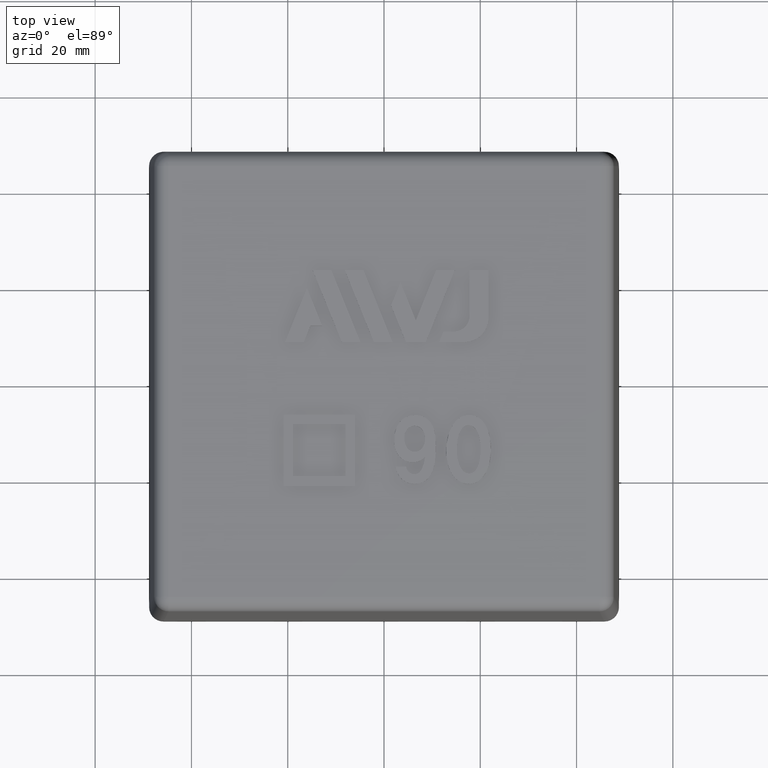
[diagram: clean part render]
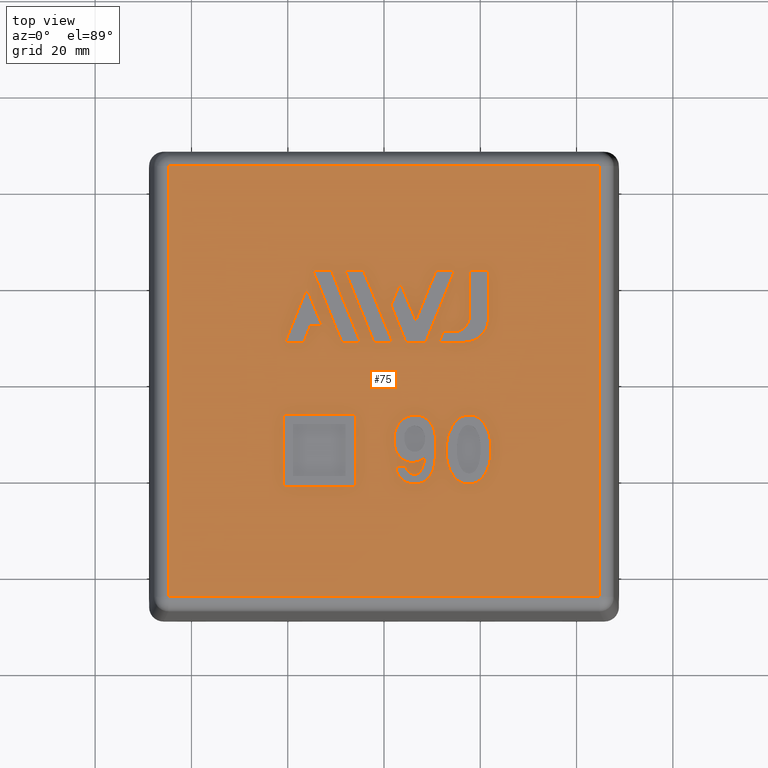
[diagram: same view with one face highlighted and labeled with its STEP entity id]
A machine part, top view. The second image highlights one B-rep face of the part: STEP entity #75.
In plain terms, the highlighted planar face has unit normal (0, 0, 1).
Its self-contained STEP definition (entity closure, byte-faithful):
#75 = ADVANCED_FACE( '', ( #153, #154, #155, #156, #157, #158, #159, #160, #161 ), #162, .T. );
#153 = FACE_BOUND( '', #322, .T. );
#154 = FACE_OUTER_BOUND( '', #323, .T. );
#155 = FACE_BOUND( '', #324, .T. );
#156 = FACE_BOUND( '', #325, .T. );
#157 = FACE_BOUND( '', #326, .T. );
#158 = FACE_BOUND( '', #327, .T. );
#159 = FACE_BOUND( '', #328, .T. );
#160 = FACE_BOUND( '', #329, .T. );
#161 = FACE_BOUND( '', #330, .T. );
#162 = PLANE( '', #331 );
#322 = EDGE_LOOP( '', ( #497, #498, #499, #500 ) );
#323 = EDGE_LOOP( '', ( #501, #502, #503, #504 ) );
#324 = EDGE_LOOP( '', ( #505, #506, #507, #508, #509, #510, #511, #512 ) );
#325 = EDGE_LOOP( '', ( #513, #514, #515, #516, #517, #518, #519 ) );
#326 = EDGE_LOOP( '', ( #520, #521, #522, #523 ) );
#327 = EDGE_LOOP( '', ( #524, #525, #526, #527 ) );
#328 = EDGE_LOOP( '', ( #528, #529, #530, #531, #532 ) );
#329 = EDGE_LOOP( '', ( #533, #534, #535, #536 ) );
#330 = EDGE_LOOP( '', ( #537 ) );
#331 = AXIS2_PLACEMENT_3D( '', #538, #539, #540 );
#497 = ORIENTED_EDGE( '', *, *, #1152, .T. );
#498 = ORIENTED_EDGE( '', *, *, #1153, .T. );
#499 = ORIENTED_EDGE( '', *, *, #1154, .T. );
#500 = ORIENTED_EDGE( '', *, *, #1155, .T. );
#501 = ORIENTED_EDGE( '', *, *, #1156, .T. );
#502 = ORIENTED_EDGE( '', *, *, #1157, .T. );
#503 = ORIENTED_EDGE( '', *, *, #1158, .T. );
#504 = ORIENTED_EDGE( '', *, *, #1159, .T. );
#505 = ORIENTED_EDGE( '', *, *, #1160, .F. );
#506 = ORIENTED_EDGE( '', *, *, #1161, .F. );
#507 = ORIENTED_EDGE( '', *, *, #1162, .F. );
#508 = ORIENTED_EDGE( '', *, *, #1163, .F. );
#509 = ORIENTED_EDGE( '', *, *, #1164, .F. );
#510 = ORIENTED_EDGE( '', *, *, #1165, .F. );
#511 = ORIENTED_EDGE( '', *, *, #1166, .F. );
#512 = ORIENTED_EDGE( '', *, *, #1167, .F. );
#513 = ORIENTED_EDGE( '', *, *, #1168, .F. );
#514 = ORIENTED_EDGE( '', *, *, #1169, .F. );
#515 = ORIENTED_EDGE( '', *, *, #1170, .F. );
#516 = ORIENTED_EDGE( '', *, *, #1171, .F. );
#517 = ORIENTED_EDGE( '', *, *, #1172, .F. );
#518 = ORIENTED_EDGE( '', *, *, #1173, .F. );
#519 = ORIENTED_EDGE( '', *, *, #1174, .F. );
#520 = ORIENTED_EDGE( '', *, *, #1175, .F. );
#521 = ORIENTED_EDGE( '', *, *, #1176, .F. );
#522 = ORIENTED_EDGE( '', *, *, #1177, .F. );
#523 = ORIENTED_EDGE( '', *, *, #1178, .F. );
#524 = ORIENTED_EDGE( '', *, *, #1179, .F. );
#525 = ORIENTED_EDGE( '', *, *, #1180, .F. );
#526 = ORIENTED_EDGE( '', *, *, #1181, .F. );
#527 = ORIENTED_EDGE( '', *, *, #1182, .F. );
#528 = ORIENTED_EDGE( '', *, *, #1183, .F. );
#529 = ORIENTED_EDGE( '', *, *, #1184, .F. );
#530 = ORIENTED_EDGE( '', *, *, #1185, .F. );
#531 = ORIENTED_EDGE( '', *, *, #1186, .F. );
#532 = ORIENTED_EDGE( '', *, *, #1187, .F. );
#533 = ORIENTED_EDGE( '', *, *, #1188, .T. );
#534 = ORIENTED_EDGE( '', *, *, #1189, .T. );
#535 = ORIENTED_EDGE( '', *, *, #1190, .T. );
#536 = ORIENTED_EDGE( '', *, *, #1191, .T. );
#537 = ORIENTED_EDGE( '', *, *, #1192, .T. );
#538 = CARTESIAN_POINT( '', ( -48.8000000000000, -48.8000000000000, 63.0000000000000 ) );
#539 = DIRECTION( '', ( 0.000000000000000, 0.000000000000000, 1.00000000000000 ) );
#540 = DIRECTION( '', ( 0.000000000000000, -1.00000000000000, 0.000000000000000 ) );
#1152 = EDGE_CURVE( '', #1326, #1327, #1328, .T. );
#1153 = EDGE_CURVE( '', #1327, #1329, #1330, .T. );
#1154 = EDGE_CURVE( '', #1329, #1331, #1332, .T. );
#1155 = EDGE_CURVE( '', #1331, #1326, #1333, .T. );
#1156 = EDGE_CURVE( '', #1334, #1335, #1336, .F. );
#1157 = EDGE_CURVE( '', #1335, #1337, #1338, .F. );
#1158 = EDGE_CURVE( '', #1337, #1339, #1340, .F. );
#1159 = EDGE_CURVE( '', #1339, #1334, #1341, .F. );
#1160 = EDGE_CURVE( '', #1342, #1343, #1344, .T. );
#1161 = EDGE_CURVE( '', #1345, #1342, #1346, .T. );
#1162 = EDGE_CURVE( '', #1347, #1345, #1348, .T. );
#1163 = EDGE_CURVE( '', #1349, #1347, #1350, .T. );
#1164 = EDGE_CURVE( '', #1351, #1349, #1352, .T. );
#1165 = EDGE_CURVE( '', #1353, #1351, #1354, .T. );
#1166 = EDGE_CURVE( '', #1355, #1353, #1356, .T. );
#1167 = EDGE_CURVE( '', #1343, #1355, #1357, .T. );
#1168 = EDGE_CURVE( '', #1358, #1359, #1360, .T. );
#1169 = EDGE_CURVE( '', #1361, #1358, #1362, .T. );
#1170 = EDGE_CURVE( '', #1363, #1361, #1364, .T. );
#1171 = EDGE_CURVE( '', #1365, #1363, #1366, .T. );
#1172 = EDGE_CURVE( '', #1367, #1365, #1368, .T. );
#1173 = EDGE_CURVE( '', #1369, #1367, #1370, .T. );
#1174 = EDGE_CURVE( '', #1359, #1369, #1371, .T. );
#1175 = EDGE_CURVE( '', #1372, #1373, #1374, .T. );
#1176 = EDGE_CURVE( '', #1375, #1372, #1376, .T. );
#1177 = EDGE_CURVE( '', #1377, #1375, #1378, .T. );
#1178 = EDGE_CURVE( '', #1373, #1377, #1379, .T. );
#1179 = EDGE_CURVE( '', #1380, #1381, #1382, .T. );
#1180 = EDGE_CURVE( '', #1383, #1380, #1384, .T. );
#1181 = EDGE_CURVE( '', #1385, #1383, #1386, .T. );
#1182 = EDGE_CURVE( '', #1381, #1385, #1387, .T. );
#1183 = EDGE_CURVE( '', #1388, #1389, #1390, .T. );
#1184 = EDGE_CURVE( '', #1391, #1388, #1392, .T. );
#1185 = EDGE_CURVE( '', #1393, #1391, #1394, .T. );
#1186 = EDGE_CURVE( '', #1395, #1393, #1396, .T. );
#1187 = EDGE_CURVE( '', #1389, #1395, #1397, .T. );
#1188 = EDGE_CURVE( '', #1398, #1399, #1400, .T. );
#1189 = EDGE_CURVE( '', #1399, #1401, #1402, .T. );
#1190 = EDGE_CURVE( '', #1401, #1403, #1404, .T. );
#1191 = EDGE_CURVE( '', #1403, #1398, #1405, .T. );
#1192 = EDGE_CURVE( '', #1406, #1406, #1407, .T. );
#1326 = VERTEX_POINT( '', #1614 );
#1327 = VERTEX_POINT( '', #1615 );
#1328 = B_SPLINE_CURVE_WITH_KNOTS( '', 2, ( #1616, #1617, #1618, #1619, #1620, #1621, #1622, #1623, #1624, #1625, #1626, #1627, #1628, #1629, #1630, #1631, #1632, #1633, #1634, #1635, #1636, #1637, #1638, #1639, #1640 ), .UNSPECIFIED., .F., .F., ( 3, 2, 2, 2, 2, 2, 2, 2, 2, 2, 2, 2, 3 ), ( 6.00000000000000, 7.00000000000000, 8.00000000000000, 9.00000000000000, 10.0000000000000, 11.0000000000000, 12.0000000000000, 13.0000000000000, 14.0000000000000, 15.0000000000000, 16.0000000000000, 17.0000000000000, 18.0000000000000 ), .UNSPECIFIED. );
#1329 = VERTEX_POINT( '', #1641 );
#1330 = B_SPLINE_CURVE_WITH_KNOTS( '', 2, ( #1642, #1643, #1644 ), .UNSPECIFIED., .F., .F., ( 3, 3 ), ( 0.000000000000000, 1.00000000000000 ), .UNSPECIFIED. );
#1331 = VERTEX_POINT( '', #1645 );
#1332 = B_SPLINE_CURVE_WITH_KNOTS( '', 2, ( #1646, #1647, #1648 ), .UNSPECIFIED., .F., .F., ( 3, 3 ), ( 1.00000000000000, 2.00000000000000 ), .UNSPECIFIED. );
#1333 = B_SPLINE_CURVE_WITH_KNOTS( '', 2, ( #1649, #1650, #1651, #1652, #1653, #1654, #1655, #1656, #1657 ), .UNSPECIFIED., .F., .F., ( 3, 2, 2, 2, 3 ), ( 2.00000000000000, 3.00000000000000, 4.00000000000000, 5.00000000000000, 6.00000000000000 ), .UNSPECIFIED. );
#1334 = VERTEX_POINT( '', #1658 );
#1335 = VERTEX_POINT( '', #1659 );
#1336 = LINE( '', #1660, #1661 );
#1337 = VERTEX_POINT( '', #1662 );
#1338 = LINE( '', #1663, #1664 );
#1339 = VERTEX_POINT( '', #1665 );
#1340 = LINE( '', #1666, #1667 );
#1341 = LINE( '', #1668, #1669 );
#1342 = VERTEX_POINT( '', #1670 );
#1343 = VERTEX_POINT( '', #1671 );
#1344 = LINE( '', #1672, #1673 );
#1345 = VERTEX_POINT( '', #1674 );
#1346 = LINE( '', #1675, #1676 );
#1347 = VERTEX_POINT( '', #1677 );
#1348 = LINE( '', #1678, #1679 );
#1349 = VERTEX_POINT( '', #1680 );
#1350 = CIRCLE( '', #1681, 5.00250000000000 );
#1351 = VERTEX_POINT( '', #1682 );
#1352 = LINE( '', #1683, #1684 );
#1353 = VERTEX_POINT( '', #1685 );
#1354 = LINE( '', #1686, #1687 );
#1355 = VERTEX_POINT( '', #1688 );
#1356 = LINE( '', #1689, #1690 );
#1357 = CIRCLE( '', #1691, 3.33500000000000 );
#1358 = VERTEX_POINT( '', #1692 );
#1359 = VERTEX_POINT( '', #1693 );
#1360 = LINE( '', #1694, #1695 );
#1361 = VERTEX_POINT( '', #1696 );
#1362 = LINE( '', #1697, #1698 );
#1363 = VERTEX_POINT( '', #1699 );
#1364 = LINE( '', #1700, #1701 );
#1365 = VERTEX_POINT( '', #1702 );
#1366 = LINE( '', #1703, #1704 );
#1367 = VERTEX_POINT( '', #1705 );
#1368 = LINE( '', #1706, #1707 );
#1369 = VERTEX_POINT( '', #1708 );
#1370 = LINE( '', #1709, #1710 );
#1371 = LINE( '', #1711, #1712 );
#1372 = VERTEX_POINT( '', #1713 );
#1373 = VERTEX_POINT( '', #1714 );
#1374 = LINE( '', #1715, #1716 );
#1375 = VERTEX_POINT( '', #1717 );
#1376 = LINE( '', #1718, #1719 );
#1377 = VERTEX_POINT( '', #1720 );
#1378 = LINE( '', #1721, #1722 );
#1379 = LINE( '', #1723, #1724 );
#1380 = VERTEX_POINT( '', #1725 );
#1381 = VERTEX_POINT( '', #1726 );
#1382 = LINE( '', #1727, #1728 );
#1383 = VERTEX_POINT( '', #1729 );
#1384 = LINE( '', #1730, #1731 );
#1385 = VERTEX_POINT( '', #1732 );
#1386 = LINE( '', #1733, #1734 );
#1387 = LINE( '', #1735, #1736 );
#1388 = VERTEX_POINT( '', #1737 );
#1389 = VERTEX_POINT( '', #1738 );
#1390 = LINE( '', #1739, #1740 );
#1391 = VERTEX_POINT( '', #1741 );
#1392 = LINE( '', #1742, #1743 );
#1393 = VERTEX_POINT( '', #1744 );
#1394 = LINE( '', #1745, #1746 );
#1395 = VERTEX_POINT( '', #1747 );
#1396 = LINE( '', #1748, #1749 );
#1397 = LINE( '', #1750, #1751 );
#1398 = VERTEX_POINT( '', #1752 );
#1399 = VERTEX_POINT( '', #1753 );
#1400 = B_SPLINE_CURVE_WITH_KNOTS( '', 2, ( #1754, #1755, #1756 ), .UNSPECIFIED., .F., .F., ( 3, 3 ), ( 3.00000000000000, 4.00000000000000 ), .UNSPECIFIED. );
#1401 = VERTEX_POINT( '', #1757 );
#1402 = B_SPLINE_CURVE_WITH_KNOTS( '', 2, ( #1758, #1759, #1760 ), .UNSPECIFIED., .F., .F., ( 3, 3 ), ( 0.000000000000000, 1.00000000000000 ), .UNSPECIFIED. );
#1403 = VERTEX_POINT( '', #1761 );
#1404 = B_SPLINE_CURVE_WITH_KNOTS( '', 2, ( #1762, #1763, #1764 ), .UNSPECIFIED., .F., .F., ( 3, 3 ), ( 1.00000000000000, 2.00000000000000 ), .UNSPECIFIED. );
#1405 = B_SPLINE_CURVE_WITH_KNOTS( '', 2, ( #1765, #1766, #1767 ), .UNSPECIFIED., .F., .F., ( 3, 3 ), ( 2.00000000000000, 3.00000000000000 ), .UNSPECIFIED. );
#1406 = VERTEX_POINT( '', #1768 );
#1407 = B_SPLINE_CURVE_WITH_KNOTS( '', 2, ( #1769, #1770, #1771, #1772, #1773, #1774, #1775, #1776, #1777, #1778, #1779, #1780, #1781, #1782, #1783, #1784, #1785 ), .UNSPECIFIED., .T., .F., ( 3, 2, 2, 2, 2, 2, 2, 2, 3 ), ( 0.000000000000000, 1.00000000000000, 2.00000000000000, 3.00000000000000, 4.00000000000000, 5.00000000000000, 6.00000000000000, 7.00000000000000, 8.00000000000000 ), .UNSPECIFIED. );
#1614 = CARTESIAN_POINT( '', ( 8.52767414772706, -15.6635545454546, 63.0000000000000 ) );
#1615 = CARTESIAN_POINT( '', ( 3.82616649696201, -20.4325689468947, 63.0000000000000 ) );
#1616 = CARTESIAN_POINT( '', ( 8.52767414772706, -15.6635545454546, 63.0000000000000 ) );
#1617 = CARTESIAN_POINT( '', ( 7.57312869318161, -16.8908272727273, 63.0000000000000 ) );
#1618 = CARTESIAN_POINT( '', ( 5.66436453401810, -16.8144767063608, 63.0000000000000 ) );
#1619 = CARTESIAN_POINT( '', ( 4.16403778409072, -16.7544636363637, 63.0000000000000 ) );
#1620 = CARTESIAN_POINT( '', ( 3.16413485733249, -15.5760066155415, 63.0000000000000 ) );
#1621 = CARTESIAN_POINT( '', ( 2.25494687499982, -14.5044636363637, 63.0000000000000 ) );
#1622 = CARTESIAN_POINT( '', ( 2.12705426288008, -12.8674382012310, 63.0000000000000 ) );
#1623 = CARTESIAN_POINT( '', ( 1.91403778409073, -10.1408272727274, 63.0000000000000 ) );
#1624 = CARTESIAN_POINT( '', ( 3.27767414772709, -8.43628181818191, 63.0000000000000 ) );
#1625 = CARTESIAN_POINT( '', ( 4.36858323863617, -7.07264545454555, 63.0000000000000 ) );
#1626 = CARTESIAN_POINT( '', ( 6.41460580812444, -7.03854507838741, 63.0000000000000 ) );
#1627 = CARTESIAN_POINT( '', ( 8.45949232954524, -7.00446363636373, 63.0000000000000 ) );
#1628 = CARTESIAN_POINT( '', ( 9.61858323863614, -8.50446363636372, 63.0000000000000 ) );
#1629 = CARTESIAN_POINT( '', ( 10.7776741477270, -10.0044636363637, 63.0000000000000 ) );
#1630 = CARTESIAN_POINT( '', ( 10.7776741477270, -12.8681000000001, 63.0000000000000 ) );
#1631 = CARTESIAN_POINT( '', ( 10.7776741477270, -13.3794636363637, 63.0000000000000 ) );
#1632 = CARTESIAN_POINT( '', ( 10.7776741477270, -13.8908272727273, 63.0000000000000 ) );
#1633 = CARTESIAN_POINT( '', ( 10.7776741477270, -16.1408272727273, 63.0000000000000 ) );
#1634 = CARTESIAN_POINT( '', ( 10.4353630167481, -17.5723101840940, 63.0000000000000 ) );
#1635 = CARTESIAN_POINT( '', ( 10.0276741477270, -19.2771909090909, 63.0000000000000 ) );
#1636 = CARTESIAN_POINT( '', ( 9.00494687499979, -20.2999181818182, 63.0000000000000 ) );
#1637 = CARTESIAN_POINT( '', ( 7.98221960227252, -21.3226454545455, 63.0000000000000 ) );
#1638 = CARTESIAN_POINT( '', ( 6.41403778409071, -21.3226454545455, 63.0000000000000 ) );
#1639 = CARTESIAN_POINT( '', ( 4.91403778409072, -21.3226454545455, 63.0000000000000 ) );
#1640 = CARTESIAN_POINT( '', ( 3.82616649696201, -20.4325689468947, 63.0000000000000 ) );
#1641 = CARTESIAN_POINT( '', ( 2.39131051136346, -17.7090090909091, 63.0000000000000 ) );
#1642 = CARTESIAN_POINT( '', ( 3.82616649696201, -20.4325689468947, 63.0000000000000 ) );
#1643 = CARTESIAN_POINT( '', ( 2.66403778409073, -19.4817363636364, 63.0000000000000 ) );
#1644 = CARTESIAN_POINT( '', ( 2.39131051136346, -17.7090090909091, 63.0000000000000 ) );
#1645 = CARTESIAN_POINT( '', ( 4.57312869318163, -17.7090090909091, 63.0000000000000 ) );
#1646 = CARTESIAN_POINT( '', ( 2.39131051136346, -17.7090090909091, 63.0000000000000 ) );
#1647 = CARTESIAN_POINT( '', ( 3.48221960227254, -17.7090090909091, 63.0000000000000 ) );
#1648 = CARTESIAN_POINT( '', ( 4.57312869318163, -17.7090090909091, 63.0000000000000 ) );
#1649 = CARTESIAN_POINT( '', ( 4.57312869318163, -17.7090090909091, 63.0000000000000 ) );
#1650 = CARTESIAN_POINT( '', ( 4.70949232954526, -18.5271909090909, 63.0000000000000 ) );
#1651 = CARTESIAN_POINT( '', ( 5.25107629143490, -18.9413433505359, 63.0000000000000 ) );
#1652 = CARTESIAN_POINT( '', ( 5.86858323863617, -19.4135545454546, 63.0000000000000 ) );
#1653 = CARTESIAN_POINT( '', ( 6.61958407266452, -19.2829457047540, 63.0000000000000 ) );
#1654 = CARTESIAN_POINT( '', ( 7.43676505681797, -19.1408272727273, 63.0000000000000 ) );
#1655 = CARTESIAN_POINT( '', ( 7.97620987223341, -17.9789461318325, 63.0000000000000 ) );
#1656 = CARTESIAN_POINT( '', ( 8.32312869318161, -17.2317363636364, 63.0000000000000 ) );
#1657 = CARTESIAN_POINT( '', ( 8.52767414772706, -15.6635545454546, 63.0000000000000 ) );
#1658 = CARTESIAN_POINT( '', ( -44.7522391201752, -44.7522391201752, 63.0000000000000 ) );
#1659 = CARTESIAN_POINT( '', ( 44.7522391201752, -44.7522391201752, 63.0000000000000 ) );
#1660 = CARTESIAN_POINT( '', ( 44.7007878240531, -44.7522391201752, 63.0000000000000 ) );
#1661 = VECTOR( '', #2226, 1000.00000000000 );
#1662 = CARTESIAN_POINT( '', ( 44.7522391201752, 44.7522391201752, 63.0000000000000 ) );
#1663 = CARTESIAN_POINT( '', ( 44.7522391201752, 44.7007878240531, 63.0000000000000 ) );
#1664 = VECTOR( '', #2227, 1000.00000000000 );
#1665 = CARTESIAN_POINT( '', ( -44.7522391201752, 44.7522391201752, 63.0000000000000 ) );
#1666 = CARTESIAN_POINT( '', ( -44.7007878240531, 44.7522391201752, 63.0000000000000 ) );
#1667 = VECTOR( '', #2228, 1000.00000000000 );
#1668 = CARTESIAN_POINT( '', ( -44.7522391201752, -44.7007878240531, 63.0000000000000 ) );
#1669 = VECTOR( '', #2229, 1000.00000000000 );
#1670 = CARTESIAN_POINT( '', ( 17.7868131699999, 23.1246711799999, 63.0000000000001 ) );
#1671 = CARTESIAN_POINT( '', ( 17.7868131699999, 13.6439281774999, 63.0000000000001 ) );
#1672 = CARTESIAN_POINT( '', ( 17.7868131699999, 23.1246711799999, 63.0000000000001 ) );
#1673 = VECTOR( '', #2230, 1000.00000000000 );
#1674 = CARTESIAN_POINT( '', ( 21.7060151249999, 23.1246711799999, 63.0000000000001 ) );
#1675 = CARTESIAN_POINT( '', ( 21.7060151249999, 23.1246711799999, 63.0000000000001 ) );
#1676 = VECTOR( '', #2231, 1000.00000000000 );
#1677 = CARTESIAN_POINT( '', ( 21.7060151249999, 13.1306499999998, 63.0000000000001 ) );
#1678 = CARTESIAN_POINT( '', ( 21.7060151249999, 13.1306499999998, 63.0000000000001 ) );
#1679 = VECTOR( '', #2232, 1000.00000000000 );
#1680 = CARTESIAN_POINT( '', ( 16.7035151249999, 8.12814999999982, 63.0000000000001 ) );
#1681 = AXIS2_PLACEMENT_3D( '', #2233, #2234, #2235 );
#1682 = CARTESIAN_POINT( '', ( 11.4405799725000, 8.12814999999982, 63.0000000000001 ) );
#1683 = CARTESIAN_POINT( '', ( 11.4405799725000, 8.12814999999982, 63.0000000000001 ) );
#1684 = VECTOR( '', #2236, 1000.00000000000 );
#1685 = CARTESIAN_POINT( '', ( 12.3216702974999, 10.3089281774998, 63.0000000000001 ) );
#1686 = CARTESIAN_POINT( '', ( 12.3216702974999, 10.3089281774999, 63.0000000000001 ) );
#1687 = VECTOR( '', #2237, 1000.00000000000 );
#1688 = CARTESIAN_POINT( '', ( 14.4518131699999, 10.3089281774999, 63.0000000000001 ) );
#1689 = CARTESIAN_POINT( '', ( 14.4518131699999, 10.3089281774999, 63.0000000000001 ) );
#1690 = VECTOR( '', #2238, 1000.00000000000 );
#1691 = AXIS2_PLACEMENT_3D( '', #2239, #2240, #2241 );
#1692 = CARTESIAN_POINT( '', ( 14.7109159900000, 23.1246711799999, 63.0000000000001 ) );
#1693 = CARTESIAN_POINT( '', ( 10.8356626650000, 23.1246711799999, 63.0000000000001 ) );
#1694 = CARTESIAN_POINT( '', ( 14.7109159900000, 23.1246711799999, 63.0000000000001 ) );
#1695 = VECTOR( '', #2242, 1000.00000000000 );
#1696 = CARTESIAN_POINT( '', ( 8.65223149499993, 8.12814999999982, 63.0000000000001 ) );
#1697 = CARTESIAN_POINT( '', ( 8.65223149499993, 8.12814999999982, 63.0000000000001 ) );
#1698 = VECTOR( '', #2243, 1000.00000000000 );
#1699 = CARTESIAN_POINT( '', ( 4.55572926749995, 8.12814999999982, 63.0000000000001 ) );
#1700 = CARTESIAN_POINT( '', ( 4.55572926749995, 8.12814999999982, 63.0000000000001 ) );
#1701 = VECTOR( '', #2244, 1000.00000000000 );
#1702 = CARTESIAN_POINT( '', ( 1.46830632749996, 15.7684565774999, 63.0000000000001 ) );
#1703 = CARTESIAN_POINT( '', ( 1.46830632749996, 15.7684565774998, 63.0000000000001 ) );
#1704 = VECTOR( '', #2245, 1000.00000000000 );
#1705 = CARTESIAN_POINT( '', ( 3.40593298999996, 20.5650903624998, 63.0000000000001 ) );
#1706 = CARTESIAN_POINT( '', ( 3.40593298999996, 20.5650903624998, 63.0000000000001 ) );
#1707 = VECTOR( '', #2246, 1000.00000000000 );
#1708 = CARTESIAN_POINT( '', ( 6.60355433499995, 12.6510653274998, 63.0000000000001 ) );
#1709 = CARTESIAN_POINT( '', ( 6.60355433499995, 12.6510653274998, 63.0000000000001 ) );
#1710 = VECTOR( '', #2247, 1000.00000000000 );
#1711 = CARTESIAN_POINT( '', ( 10.8356626650000, 23.1246711799999, 63.0000000000001 ) );
#1712 = VECTOR( '', #2248, 1000.00000000000 );
#1713 = CARTESIAN_POINT( '', ( 1.76738245749995, 8.12814999999982, 63.0000000000001 ) );
#1714 = CARTESIAN_POINT( '', ( -4.29225418000006, 23.1246711799998, 63.0000000000001 ) );
#1715 = CARTESIAN_POINT( '', ( 1.76738245749995, 8.12814999999982, 63.0000000000001 ) );
#1716 = VECTOR( '', #2249, 1000.00000000000 );
#1717 = CARTESIAN_POINT( '', ( -2.10782084250005, 8.12814999999982, 63.0000000000001 ) );
#1718 = CARTESIAN_POINT( '', ( -2.10782084250005, 8.12814999999982, 63.0000000000001 ) );
#1719 = VECTOR( '', #2250, 1000.00000000000 );
#1720 = CARTESIAN_POINT( '', ( -8.16745581250004, 23.1246711799998, 63.0000000000001 ) );
#1721 = CARTESIAN_POINT( '', ( -8.16745581250004, 23.1246711799998, 63.0000000000001 ) );
#1722 = VECTOR( '', #2251, 1000.00000000000 );
#1723 = CARTESIAN_POINT( '', ( -4.29225418000006, 23.1246711799998, 63.0000000000001 ) );
#1724 = VECTOR( '', #2252, 1000.00000000000 );
#1725 = CARTESIAN_POINT( '', ( -4.89626770250005, 8.12814999999982, 63.0000000000001 ) );
#1726 = CARTESIAN_POINT( '', ( -10.9559043400001, 23.1246711799998, 63.0000000000001 ) );
#1727 = CARTESIAN_POINT( '', ( -4.89626770250005, 8.12814999999982, 63.0000000000001 ) );
#1728 = VECTOR( '', #2253, 1000.00000000000 );
#1729 = CARTESIAN_POINT( '', ( -8.77119419750006, 8.12814999999981, 63.0000000000001 ) );
#1730 = CARTESIAN_POINT( '', ( -8.77119419750006, 8.12814999999982, 63.0000000000001 ) );
#1731 = VECTOR( '', #2254, 1000.00000000000 );
#1732 = CARTESIAN_POINT( '', ( -14.8299787425001, 23.1246711799998, 63.0000000000001 ) );
#1733 = CARTESIAN_POINT( '', ( -14.8299787425001, 23.1246711799998, 63.0000000000001 ) );
#1734 = VECTOR( '', #2255, 1000.00000000000 );
#1735 = CARTESIAN_POINT( '', ( -10.9559043400001, 23.1246711799998, 63.0000000000001 ) );
#1736 = VECTOR( '', #2256, 1000.00000000000 );
#1737 = CARTESIAN_POINT( '', ( -20.5574894000001, 8.12814999999982, 63.0000000000001 ) );
#1738 = CARTESIAN_POINT( '', ( -16.6834149975000, 8.12814999999982, 63.0000000000001 ) );
#1739 = CARTESIAN_POINT( '', ( -20.5574894000001, 8.12814999999982, 63.0000000000001 ) );
#1740 = VECTOR( '', #2257, 1000.00000000000 );
#1741 = CARTESIAN_POINT( '', ( -16.0152060600001, 19.3721458549998, 63.0000000000001 ) );
#1742 = CARTESIAN_POINT( '', ( -16.0152060600001, 19.3721458549998, 63.0000000000001 ) );
#1743 = VECTOR( '', #2258, 1000.00000000000 );
#1744 = CARTESIAN_POINT( '', ( -12.8731841675000, 11.5917742799998, 63.0000000000001 ) );
#1745 = CARTESIAN_POINT( '', ( -12.8731841675001, 11.5917742799998, 63.0000000000001 ) );
#1746 = VECTOR( '', #2259, 1000.00000000000 );
#1747 = CARTESIAN_POINT( '', ( -15.2830018075000, 11.5917742799998, 63.0000000000001 ) );
#1748 = CARTESIAN_POINT( '', ( -15.2830018075000, 11.5917742799998, 63.0000000000001 ) );
#1749 = VECTOR( '', #2260, 1000.00000000000 );
#1750 = CARTESIAN_POINT( '', ( -16.6834149975000, 8.12814999999982, 63.0000000000001 ) );
#1751 = VECTOR( '', #2261, 1000.00000000000 );
#1752 = CARTESIAN_POINT( '', ( -5.99505312500014, -21.7999181818182, 63.0000000000000 ) );
#1753 = CARTESIAN_POINT( '', ( -20.9268713068182, -21.7999181818182, 63.0000000000000 ) );
#1754 = CARTESIAN_POINT( '', ( -5.99505312500014, -21.7999181818182, 63.0000000000000 ) );
#1755 = CARTESIAN_POINT( '', ( -13.4609622159092, -21.7999181818182, 63.0000000000000 ) );
#1756 = CARTESIAN_POINT( '', ( -20.9268713068182, -21.7999181818182, 63.0000000000000 ) );
#1757 = CARTESIAN_POINT( '', ( -20.9268713068182, -6.93628181818191, 63.0000000000000 ) );
#1758 = CARTESIAN_POINT( '', ( -20.9268713068182, -21.7999181818182, 63.0000000000000 ) );
#1759 = CARTESIAN_POINT( '', ( -20.9268713068182, -14.3681000000000, 63.0000000000000 ) );
#1760 = CARTESIAN_POINT( '', ( -20.9268713068182, -6.93628181818191, 63.0000000000000 ) );
#1761 = CARTESIAN_POINT( '', ( -5.99505312500014, -6.93628181818191, 63.0000000000000 ) );
#1762 = CARTESIAN_POINT( '', ( -20.9268713068182, -6.93628181818191, 63.0000000000000 ) );
#1763 = CARTESIAN_POINT( '', ( -13.4609622159092, -6.93628181818191, 63.0000000000000 ) );
#1764 = CARTESIAN_POINT( '', ( -5.99505312500014, -6.93628181818191, 63.0000000000000 ) );
#1765 = CARTESIAN_POINT( '', ( -5.99505312500014, -6.93628181818191, 63.0000000000000 ) );
#1766 = CARTESIAN_POINT( '', ( -5.99505312500014, -14.3681000000000, 63.0000000000000 ) );
#1767 = CARTESIAN_POINT( '', ( -5.99505312500014, -21.7999181818182, 63.0000000000000 ) );
#1768 = CARTESIAN_POINT( '', ( 14.3862489790093, -19.6219705835649, 63.0000000000000 ) );
#1769 = CARTESIAN_POINT( '', ( 14.3862489790093, -19.6219705835649, 63.0000000000000 ) );
#1770 = CARTESIAN_POINT( '', ( 13.0276741477270, -17.8453727272728, 63.0000000000000 ) );
#1771 = CARTESIAN_POINT( '', ( 12.9328958354924, -14.8440595065108, 63.0000000000000 ) );
#1772 = CARTESIAN_POINT( '', ( 12.8231286931816, -11.3681000000001, 63.0000000000000 ) );
#1773 = CARTESIAN_POINT( '', ( 14.2365607667260, -9.10660868232899, 63.0000000000000 ) );
#1774 = CARTESIAN_POINT( '', ( 15.5504014204543, -7.00446363636373, 63.0000000000000 ) );
#1775 = CARTESIAN_POINT( '', ( 17.6640377840906, -7.00446363636373, 63.0000000000000 ) );
#1776 = CARTESIAN_POINT( '', ( 19.6413105113634, -7.00446363636373, 63.0000000000000 ) );
#1777 = CARTESIAN_POINT( '', ( 20.8464923295452, -8.74528181818190, 63.0000000000000 ) );
#1778 = CARTESIAN_POINT( '', ( 22.0958559659088, -10.5499181818183, 63.0000000000000 ) );
#1779 = CARTESIAN_POINT( '', ( 22.2220688747785, -13.5474747674735, 63.0000000000000 ) );
#1780 = CARTESIAN_POINT( '', ( 22.3685832386361, -17.0271909090909, 63.0000000000000 ) );
#1781 = CARTESIAN_POINT( '', ( 21.0143358466838, -19.2148213114754, 63.0000000000000 ) );
#1782 = CARTESIAN_POINT( '', ( 19.7094923295452, -21.3226454545455, 63.0000000000000 ) );
#1783 = CARTESIAN_POINT( '', ( 17.6640377840906, -21.3226454545455, 63.0000000000000 ) );
#1784 = CARTESIAN_POINT( '', ( 15.6867650568179, -21.3226454545455, 63.0000000000000 ) );
#1785 = CARTESIAN_POINT( '', ( 14.3862489790093, -19.6219705835649, 63.0000000000000 ) );
#2226 = DIRECTION( '', ( -1.00000000000000, 0.000000000000000, 0.000000000000000 ) );
#2227 = DIRECTION( '', ( 0.000000000000000, -1.00000000000000, 0.000000000000000 ) );
#2228 = DIRECTION( '', ( 1.00000000000000, 0.000000000000000, 0.000000000000000 ) );
#2229 = DIRECTION( '', ( 0.000000000000000, 1.00000000000000, 0.000000000000000 ) );
#2230 = DIRECTION( '', ( -2.22044604925031E-016, -1.00000000000000, -2.71917234023173E-032 ) );
#2231 = DIRECTION( '', ( -1.00000000000000, -1.66533453693774E-016, -1.22460635382238E-016 ) );
#2232 = DIRECTION( '', ( 2.22044604925031E-016, 1.00000000000000, 2.71917234023173E-032 ) );
#2233 = CARTESIAN_POINT( '', ( 16.7035151249999, 13.1306499999998, 63.0000000000001 ) );
#2234 = DIRECTION( '', ( -1.22460635382238E-016, 6.99949108067063E-048, 1.00000000000000 ) );
#2235 = DIRECTION( '', ( 1.00000000000000, 2.89120579329468E-016, 1.22460635382238E-016 ) );
#2236 = DIRECTION( '', ( 1.00000000000000, 2.22044604925031E-016, 1.22460635382238E-016 ) );
#2237 = DIRECTION( '', ( -0.374606136016172, -0.927184039368147, -4.58745054346254E-017 ) );
#2238 = DIRECTION( '', ( -1.00000000000000, -2.77555756156289E-016, -1.22460635382238E-016 ) );
#2239 = CARTESIAN_POINT( '', ( 14.4518131699999, 13.6439281774999, 63.0000000000001 ) );
#2240 = DIRECTION( '', ( 1.22460635382238E-016, 0.000000000000000, -1.00000000000000 ) );
#2241 = DIRECTION( '', ( 1.00000000000000, 0.000000000000000, 1.22460635382238E-016 ) );
#2242 = DIRECTION( '', ( -1.00000000000000, 0.000000000000000, -1.22460635382238E-016 ) );
#2243 = DIRECTION( '', ( 0.374590469627020, 0.927190368837278, 4.58725869186557E-017 ) );
#2244 = DIRECTION( '', ( 1.00000000000000, 5.55111512312578E-017, 1.22460635382238E-016 ) );
#2245 = DIRECTION( '', ( 0.374662791989133, -0.927161146888127, 4.58814435610724E-017 ) );
#2246 = DIRECTION( '', ( -0.374550228315492, -0.927206625552694, -4.58676589420774E-017 ) );
#2247 = DIRECTION( '', ( -0.374621466961798, 0.927177845125405, -4.58763828719678E-017 ) );
#2248 = DIRECTION( '', ( -0.374644407000048, -0.927168575990139, -4.58791921236276E-017 ) );
#2249 = DIRECTION( '', ( -0.374641075834904, 0.927169922019295, -4.58787841870275E-017 ) );
#2250 = DIRECTION( '', ( 1.00000000000000, 0.000000000000000, 1.22460635382238E-016 ) );
#2251 = DIRECTION( '', ( 0.374640987210496, -0.927169957829710, 4.58787733340261E-017 ) );
#2252 = DIRECTION( '', ( -1.00000000000000, 0.000000000000000, -1.22460635382238E-016 ) );
#2253 = DIRECTION( '', ( -0.374641075834905, 0.927169922019295, -4.58787841870275E-017 ) );
#2254 = DIRECTION( '', ( 1.00000000000000, 0.000000000000000, 1.22460635382238E-016 ) );
#2255 = DIRECTION( '', ( 0.374595787424495, -0.927188220397468, 4.58732381395133E-017 ) );
#2256 = DIRECTION( '', ( -1.00000000000000, 0.000000000000000, -1.22460635382238E-016 ) );
#2257 = DIRECTION( '', ( 1.00000000000000, 0.000000000000000, 1.22460635382238E-016 ) );
#2258 = DIRECTION( '', ( -0.374565060835224, -0.927200633736574, -4.58694753418681E-017 ) );
#2259 = DIRECTION( '', ( -0.374457798873769, 0.927243957576760, -4.58563399739159E-017 ) );
#2260 = DIRECTION( '', ( 1.00000000000000, 0.000000000000000, 1.22460635382238E-016 ) );
#2261 = DIRECTION( '', ( 0.374840859640758, 0.927089170438194, 4.59032498388314E-017 ) );